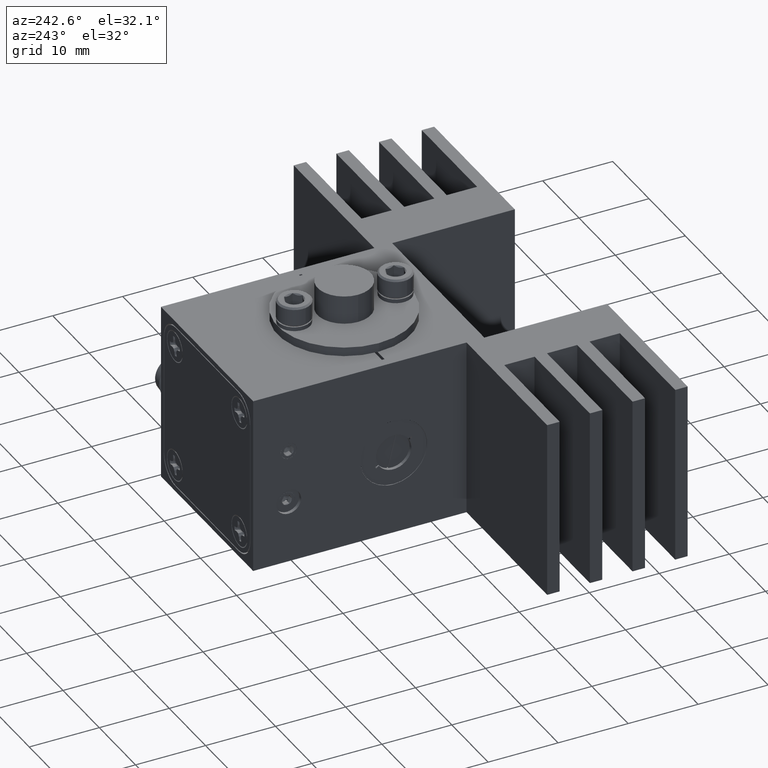
[diagram: clean part render]
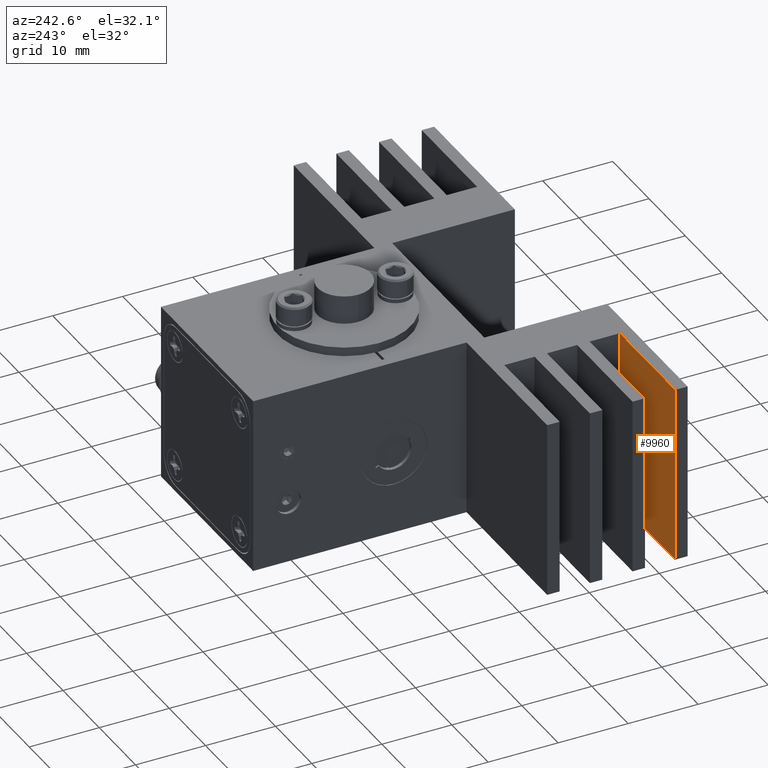
[diagram: same view with one face highlighted and labeled with its STEP entity id]
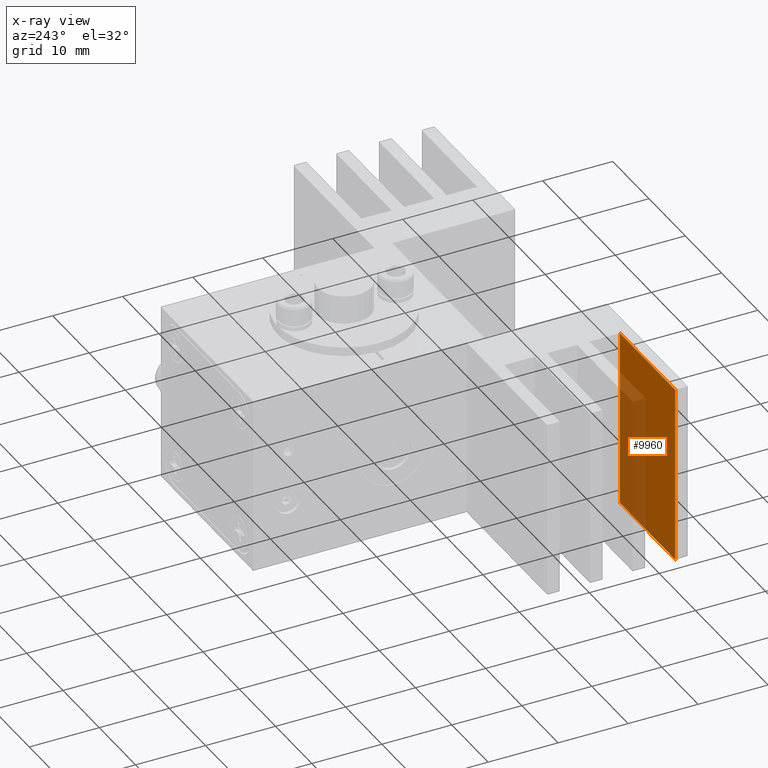
[diagram: x-ray of the same camera — body ghosted, the highlighted face saturated]
A machine part, auxiliary view. The second image highlights one B-rep face of the part: STEP entity #9960.
The next image is the same camera in x-ray: the body ghosted, the highlighted face saturated — about 35% of this face is hidden behind the body in this view.
In plain terms, the highlighted planar face has unit normal (0, -1, 0).
Its self-contained STEP definition (entity closure, byte-faithful):
#192 = CARTESIAN_POINT ( 'NONE',  ( -34.92499999999999700, -29.71800000000000000, -12.69999999999999600 ) ) ;
#559 = ORIENTED_EDGE ( 'NONE', *, *, #1651, .F. ) ;
#1055 = LINE ( 'NONE', #15286, #7149 ) ;
#1631 = EDGE_CURVE ( 'NONE', #16145, #5977, #5543, .T. ) ;
#1651 = EDGE_CURVE ( 'NONE', #5977, #7391, #5753, .T. ) ;
#3312 = EDGE_CURVE ( 'NONE', #6801, #7391, #1055, .T. ) ;
#4262 = CARTESIAN_POINT ( 'NONE',  ( -19.68500000000000200, -29.71800000000000000, 12.70000000000000300 ) ) ;
#4279 = VECTOR ( 'NONE', #12575, 1000.000000000000000 ) ;
#4370 = EDGE_LOOP ( 'NONE', ( #4571, #559, #14921, #15231 ) ) ;
#4571 = ORIENTED_EDGE ( 'NONE', *, *, #3312, .T. ) ;
#5395 = DIRECTION ( 'NONE',  ( 0.0000000000000000000, -1.000000000000000000, 0.0000000000000000000 ) ) ;
#5406 = FACE_OUTER_BOUND ( 'NONE', #4370, .T. ) ;
#5513 = PLANE ( 'NONE',  #14721 ) ;
#5543 = LINE ( 'NONE', #4262, #14353 ) ;
#5608 = DIRECTION ( 'NONE',  ( -0.0000000000000000000, -0.0000000000000000000, -1.000000000000000000 ) ) ;
#5735 = DIRECTION ( 'NONE',  ( -1.000000000000000000, 0.0000000000000000000, 0.0000000000000000000 ) ) ;
#5753 = LINE ( 'NONE', #13641, #17289 ) ;
#5977 = VERTEX_POINT ( 'NONE', #7059 ) ;
#6801 = VERTEX_POINT ( 'NONE', #13074 ) ;
#6976 = DIRECTION ( 'NONE',  ( 0.0000000000000000000, -0.0000000000000000000, -1.000000000000000000 ) ) ;
#7059 = CARTESIAN_POINT ( 'NONE',  ( -34.92499999999999700, -29.71800000000000000, 12.70000000000000300 ) ) ;
#7149 = VECTOR ( 'NONE', #5735, 1000.000000000000000 ) ;
#7391 = VERTEX_POINT ( 'NONE', #192 ) ;
#8254 = DIRECTION ( 'NONE',  ( -1.000000000000000000, 0.0000000000000000000, 0.0000000000000000000 ) ) ;
#8473 = CARTESIAN_POINT ( 'NONE',  ( -19.68500000000000200, -29.71800000000000000, 12.70000000000000300 ) ) ;
#9519 = CARTESIAN_POINT ( 'NONE',  ( -19.68500000000000200, -29.71800000000000000, 12.70000000000000300 ) ) ;
#9960 = ADVANCED_FACE ( 'NONE', ( #5406 ), #5513, .F. ) ;
#12575 = DIRECTION ( 'NONE',  ( -0.0000000000000000000, -0.0000000000000000000, -1.000000000000000000 ) ) ;
#12609 = CARTESIAN_POINT ( 'NONE',  ( -19.68500000000000200, -29.71800000000000000, 12.70000000000000300 ) ) ;
#12795 = EDGE_CURVE ( 'NONE', #16145, #6801, #14552, .T. ) ;
#13074 = CARTESIAN_POINT ( 'NONE',  ( -19.68500000000000200, -29.71800000000000000, -12.69999999999999600 ) ) ;
#13641 = CARTESIAN_POINT ( 'NONE',  ( -34.92499999999999700, -29.71800000000000000, 12.70000000000000300 ) ) ;
#14353 = VECTOR ( 'NONE', #8254, 1000.000000000000000 ) ;
#14552 = LINE ( 'NONE', #8473, #4279 ) ;
#14721 = AXIS2_PLACEMENT_3D ( 'NONE', #9519, #5395, #6976 ) ;
#14921 = ORIENTED_EDGE ( 'NONE', *, *, #1631, .F. ) ;
#15231 = ORIENTED_EDGE ( 'NONE', *, *, #12795, .T. ) ;
#15286 = CARTESIAN_POINT ( 'NONE',  ( -19.68500000000000200, -29.71800000000000000, -12.69999999999999600 ) ) ;
#16145 = VERTEX_POINT ( 'NONE', #12609 ) ;
#17289 = VECTOR ( 'NONE', #5608, 1000.000000000000000 ) ;